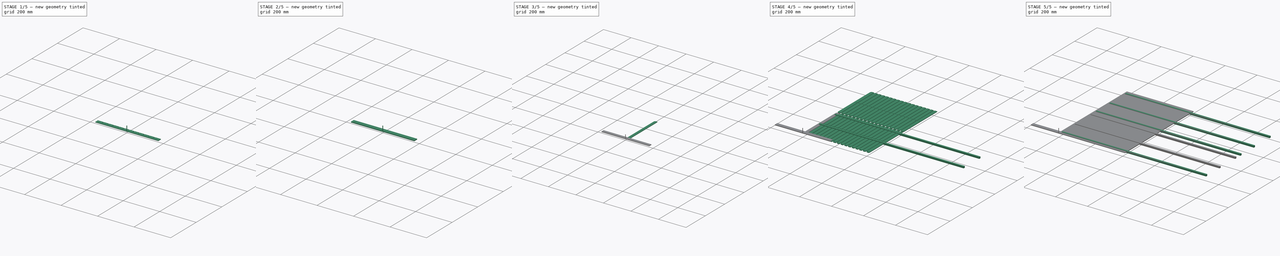
[diagram: build sequence overview — one tinted view per stage of 5, left to right]
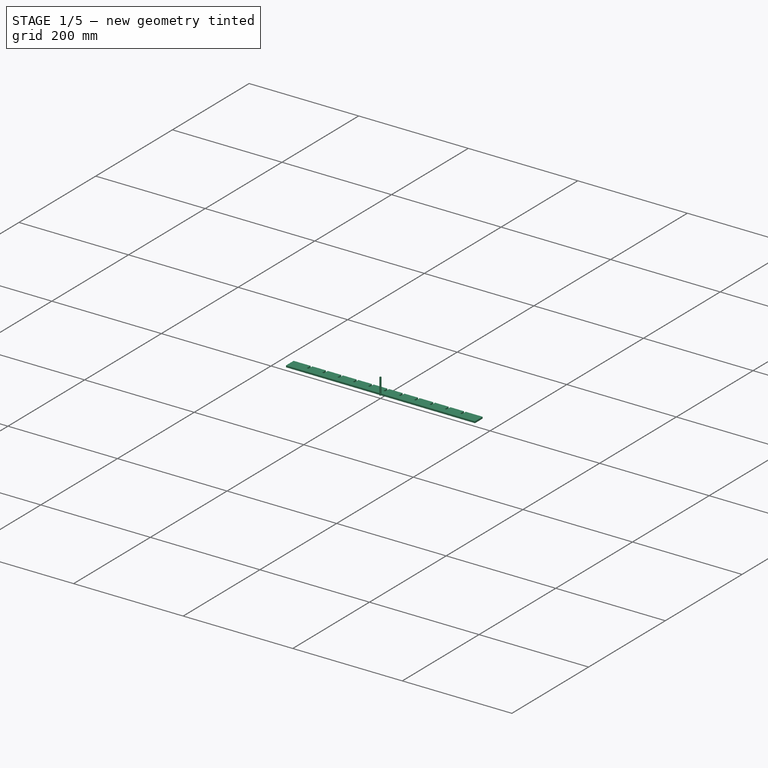
[diagram: stage 1 of 5 — iso view after this stage's code; geometry added in this stage tinted green]
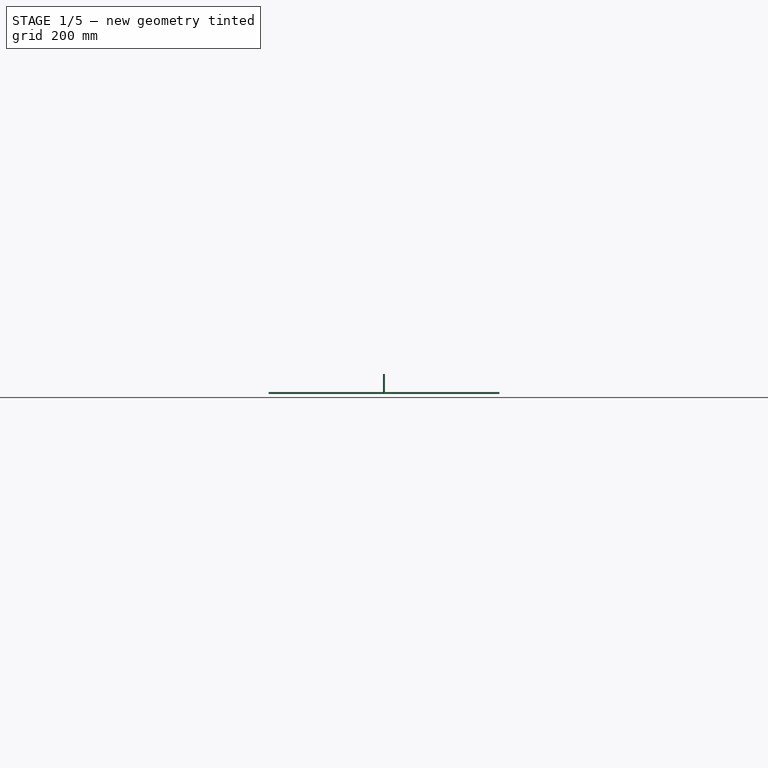
[diagram: stage 1 of 5 — front view after this stage's code; geometry added in this stage tinted green]
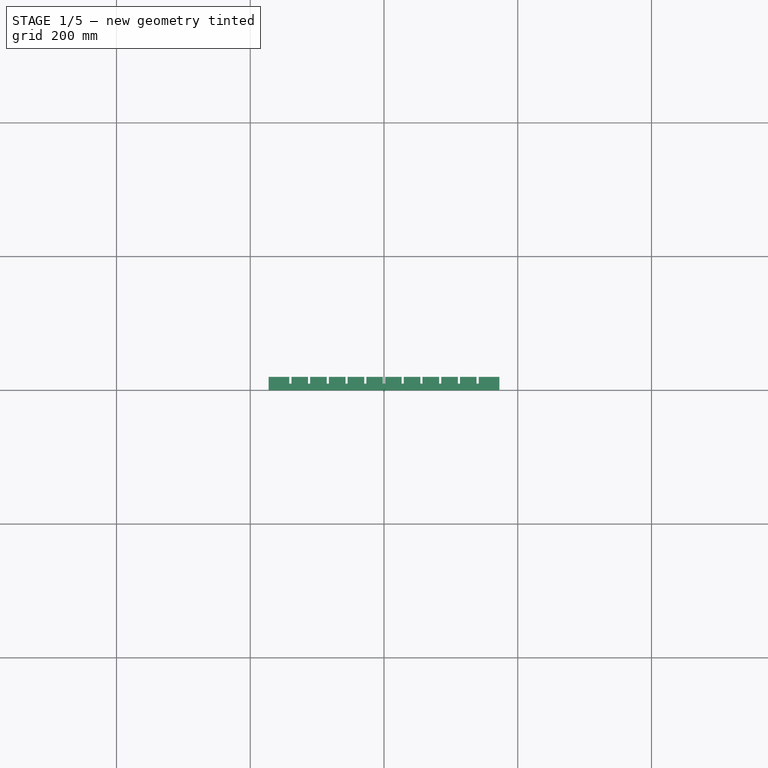
[diagram: stage 1 of 5 — top view after this stage's code; geometry added in this stage tinted green]
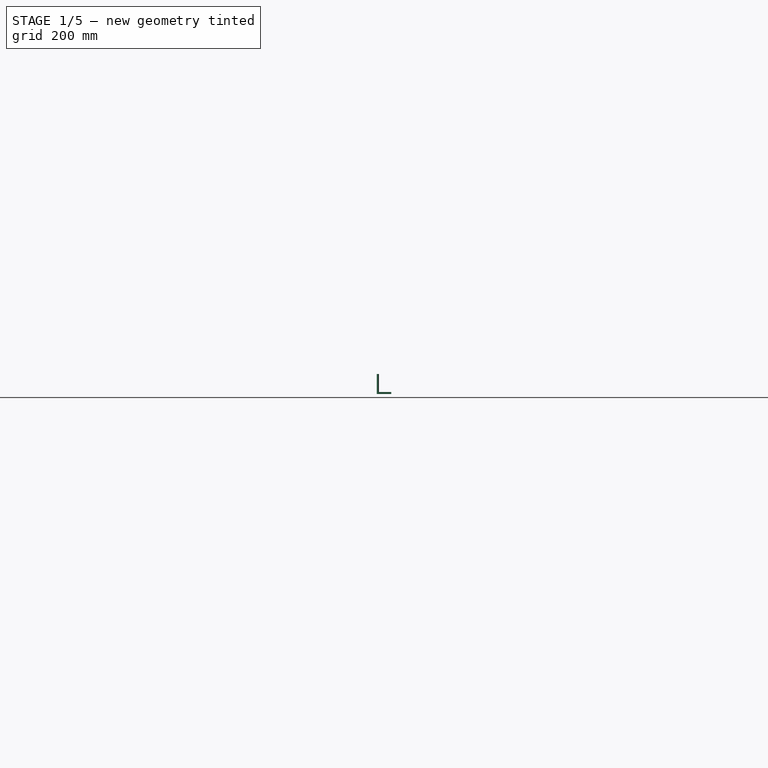
[diagram: stage 1 of 5 — right view after this stage's code; geometry added in this stage tinted green]
FCSTD DOCUMENT  (FreeCAD 0.22R37100 (Git))
Label: basin_bottom_lattice
License: All rights reserved
LicenseURL: http://en.wikipedia.org/wiki/All_rights_reserved
objects: App::LinkElement×36, Part::FeaturePython×10, Path::FeaturePython×10, App::DocumentObjectGroup×6, Sketcher::SketchObject×5, PartDesign::Pocket×4, Part::Box×3, PartDesign::Pad×2, PartDesign::SubShapeBinder×2, PartDesign::LinearPattern×2, PartDesign::Body×2, App::FeaturePython×2, Spreadsheet::Sheet×1, Part::Compound×1
note: 40 computed .brp shape members not serialized (recipe doc carries the construction recipe); baked Part::Feature solids carry a one-line shape summary decoded from their .brp

FEATURE [PartDesign::SubShapeBinder] Binder001
  BindCopyOnChange = 0
  BindMode = 0
  ClaimChildren = true
  Context = -> Body001 [Binder001.]
  Fuse = false
  MakeFace = true
  OffsetFill = false
  OffsetIntersection = false
  OffsetJoinType = 0
  OffsetOpenResult = false
  PartialLoad = false
  Placement = pos=(-140,0,0) rot=(0,0,1;0rad)
  Relative = false
  Support = -> [Populate]
  _Version = 2
  expr: .Placement.Base.x = -(<<Properties>>.cell_number_y - 2) * <<Properties>>.cell_distance_y / 2
FEATURE [PartDesign::Pad] Pad001
  Direction = (0,0,1)
  Length = 3
  Length2 = 10
  Profile = -> Sketch002
  ReferenceAxis = -> Sketch002 [N_Axis]
  Suppressed = false
  Type = 0
  expr: Length = <<Properties>>.wall_thickness
FEATURE [PartDesign::Pocket] Pocket001
  BaseFeature = -> Pad001
  Direction = (0,0,-1)
  Length = 5
  Length2 = 5
  Midplane = true
  Profile = -> Binder001
  Suppressed = false
  Type = 1
FEATURE [PartDesign::LinearPattern] LinearPattern001
  BaseFeature = -> Pocket001
  Direction = -> X_Axis001
  Length = 280
  Mode = 1
  Occurrences = 11
  Offset = 28
  Originals = -> [Pocket001]
  Suppressed = false
  expr: Occurrences = <<Properties>>.cell_number_y - 1
  expr: Offset = <<Properties>>.cell_distance_y
FEATURE [App::DocumentObjectGroup] Model001
  Group = -> [Clone001]
FEATURE [Part::FeaturePython] ToolBit001  label="3.175mm Endmill003"  # Path/CAM toolbit (typed FeaturePython)
  BitPropertyNames = Chipload | CuttingEdgeHeight | Diameter | Flutes | Length | Material | ShankDiameter | SpindleDirection
  BitShape = <path>
  Chipload = 0
  CuttingEdgeHeight = 30
  Diameter = 3.17
  Flutes = 0
  Length = 10
  Material = 0
  ShankDiameter = 3
  ShapeName = endmill
  SpindleDirection = 0
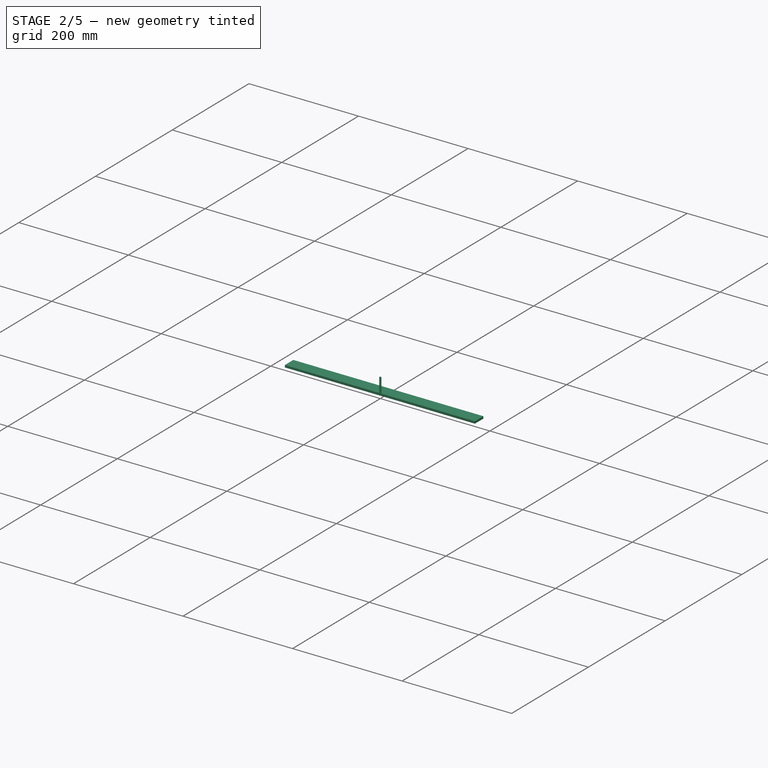
[diagram: stage 2 of 5 — iso view after this stage's code; geometry added in this stage tinted green]
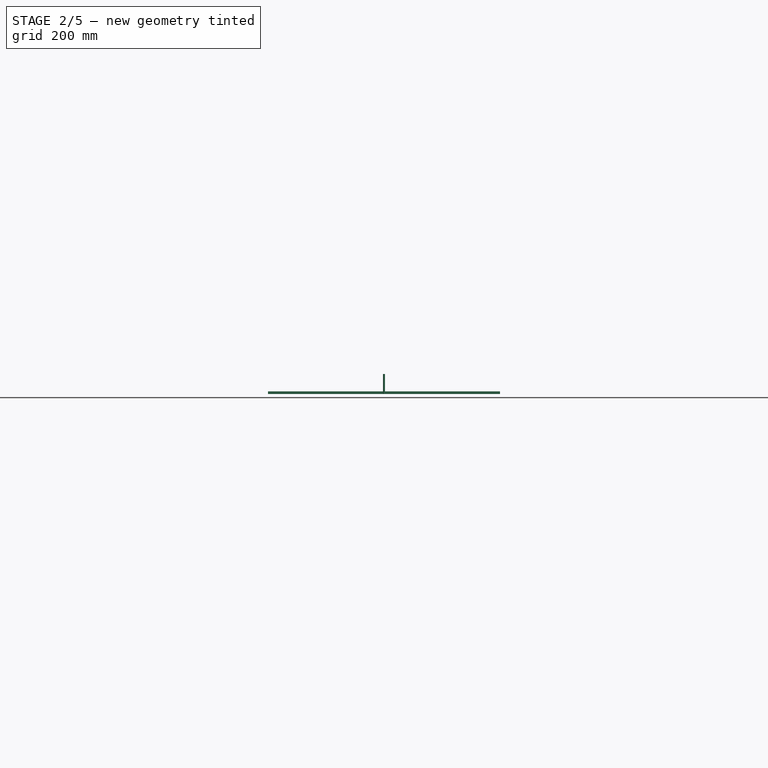
[diagram: stage 2 of 5 — front view after this stage's code; geometry added in this stage tinted green]
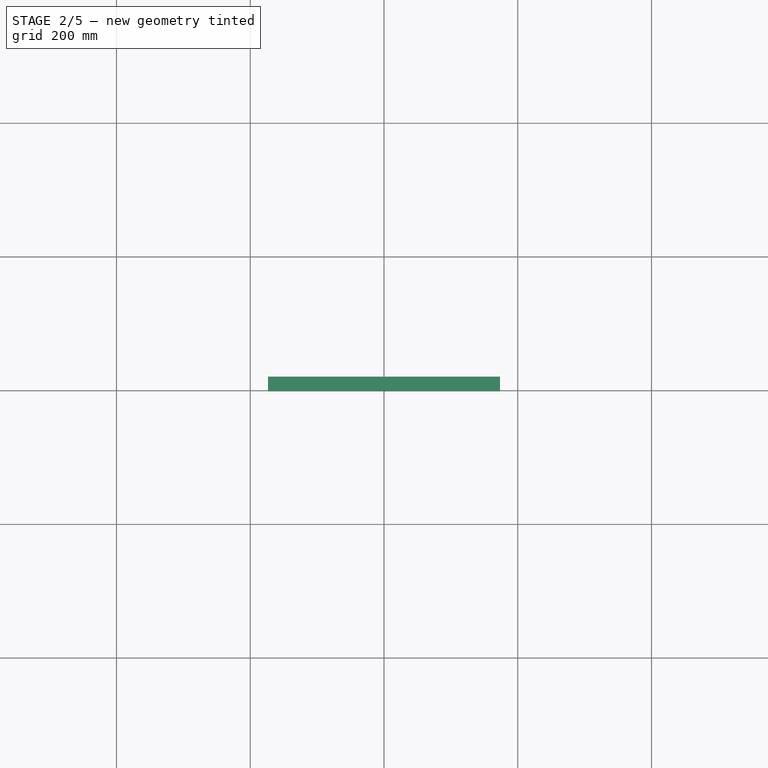
[diagram: stage 2 of 5 — top view after this stage's code; geometry added in this stage tinted green]
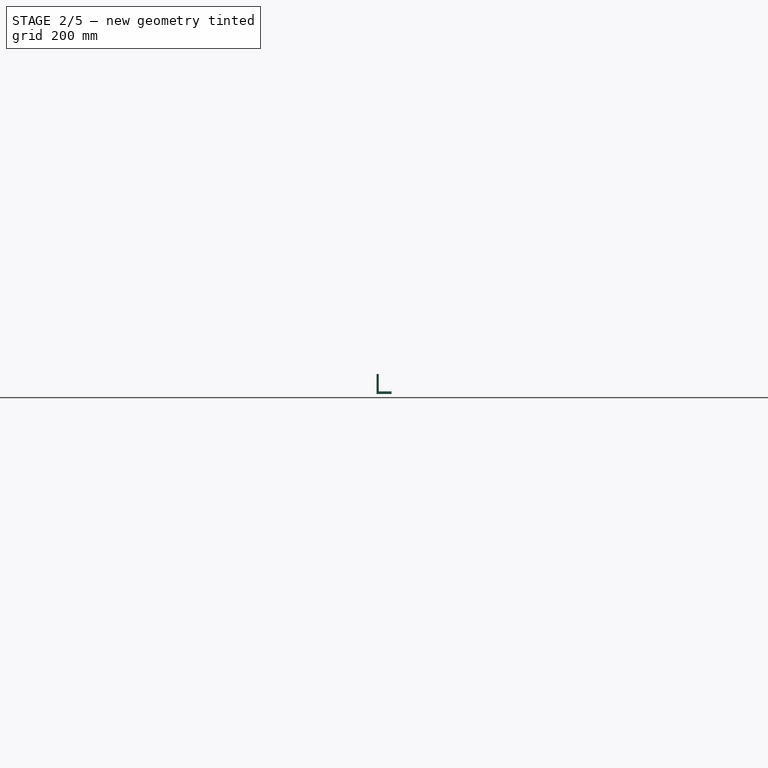
[diagram: stage 2 of 5 — right view after this stage's code; geometry added in this stage tinted green]
FEATURE [Sketcher::SketchObject] Sketch
  AttachmentSupport = -> [XY_Plane]
  FullyConstrained = true
  MapMode = 5
  expr: Constraints[8] = <<Properties>>.cell_height
  expr: Constraints[9] = <<Properties>>.basin_width
  sketch-geometry (11):
    g0: LineSegment StartX=-151.5 StartY=0 StartZ=0 EndX=151.5 EndY=0 EndZ=0
    g1: GeomPoint X=0 Y=10 Z=0
    g2: LineSegment StartX=151.5 StartY=20 StartZ=0 EndX=144.5 EndY=20 EndZ=0
    g3: LineSegment StartX=151.5 StartY=0 StartZ=0 EndX=151.5 EndY=15 EndZ=0
    g4: LineSegment StartX=151.5 StartY=15 StartZ=0 EndX=151.5 EndY=20 EndZ=0
    g5: LineSegment StartX=144.5 StartY=20 StartZ=0 EndX=-144.5 EndY=20 EndZ=0
    g6: LineSegment StartX=-144.5 StartY=20 StartZ=0 EndX=-151.5 EndY=20 EndZ=0
    g7: LineSegment StartX=-151.5 StartY=20 StartZ=0 EndX=-151.5 EndY=15 EndZ=0
    g8: LineSegment StartX=-151.5 StartY=15 StartZ=0 EndX=-151.5 EndY=0 EndZ=0
    g9: LineSegment StartX=-151.5 StartY=15 StartZ=0 EndX=-144.5 EndY=20 EndZ=0
    g10: LineSegment StartX=151.5 StartY=15 StartZ=0 EndX=144.5 EndY=20 EndZ=0
  constraints (29):
    c: Coincident(g8,g0)
    c: Coincident(g0,g3)
    c: Coincident(g4,g2)
    c: Coincident(g6,g7)
    c: Horizontal(g0)
    c: Symmetric(g0,g7,g1)
    c: PointOnObject(g1,g-2)
    c: PointOnObject(g0,g-1)
    c: DistanceY(g4) = 20
    c: DistanceX(g0,g0) = 303
    c: Coincident(g2,g5)
    c: Horizontal(g2)
    c: Coincident(g3,g4)
    c: Vertical(g3)
    c: Vertical(g4)
    c: Coincident(g5,g6)
    c: Horizontal(g5)
    c: Horizontal(g6)
    c: Coincident(g7,g8)
    c: Vertical(g7)
    c: Vertical(g8)
    c: Coincident(g9,g7)
    c: Coincident(g9,g5)
    c: Coincident(g10,g3)
    c: Coincident(g10,g2)
    c: Equal(g7,g4)
    c: Equal(g2,g6)
    c: DistanceY(g4,g4) = 5
    c: DistanceX(g2,g2) = 7
FEATURE [Spreadsheet::Sheet] Spreadsheet  label="Properties"
  cells = B2(cell_length)==145 mm; C2(cell_width)==25 mm; D2(cell_height)==20 mm; E2(cell_number_x)==floor(basin_width / cell_distance_x); F2(cell_number_y)==floor(basin_length / cell_distance_y); G2(wall_thickness)==3 mm; H2(basin_length)==345 mm; I2(basin_width)==303 mm; J2(cell_distance_x)==cell_length + wall_thickness; K2(cell_distance_y)==cell_width + wall_thickness
FEATURE [Sketcher::SketchObject] Sketch001  label="connection_cut_bottom"
  FullyConstrained = true
  expr: Constraints[11] = <<Properties>>.cell_height / 2
  sketch-geometry (5):
    g0: LineSegment StartX=-1.6 StartY=10 StartZ=0 EndX=-1.6 EndY=0 EndZ=0
    g1: LineSegment StartX=-1.6 StartY=0 StartZ=0 EndX=1.6 EndY=0 EndZ=0
    g2: LineSegment StartX=1.6 StartY=0 StartZ=0 EndX=1.6 EndY=10 EndZ=0
    g3: LineSegment StartX=1.6 StartY=10 StartZ=0 EndX=-1.6 EndY=10 EndZ=0
    g4: GeomPoint X=0 Y=5 Z=0
  constraints (13):
    c: Coincident(g0,g1)
    c: Coincident(g1,g2)
    c: Coincident(g2,g3)
    c: Coincident(g3,g0)
    c: Horizontal(g1)
    c: Horizontal(g3)
    c: Vertical(g0)
    c: Vertical(g2)
    c: Symmetric(g1,g0,g4)
    c: PointOnObject(g4,g-2)
    c: PointOnObject(g1,g-1)
    c: DistanceY(g2,g2) = 10
    c: DistanceX(g1,g1) = 3.2
FEATURE [Part::FeaturePython] Placment  label="Custom"  # WARN: FeaturePython — macro-defined, semantics opaque (R4)
  ExposePlacement = true
  FlipZ = false
  Invert = false
  MarkerShape = 1
  MarkerSize = 5
  NumElements = 1
  Placement = pos=(0,20,0) rot=(0,0,1;3.14159rad)
  PlacementChoice = 0
  Type = lattice2Placement.LatticePlacement
  isLattice = 1
  expr: .Placement.Base.y = <<Properties>>.cell_height
FEATURE [Part::FeaturePython] Populate  label="connection_cut_top"  # WARN: FeaturePython — macro-defined, semantics opaque (R4)
  Copying = 0
  ExposePlacement = false
  MarkerShape = 1
  MarkerSize = 0
  NumElements = 0
  Object = -> Sketch001
  OutputCompounding = 2
  PlacementsTo = -> Placment
  Referencing = 0
  Type = lattice2PopulateCopies.LatticePopulateCopies
  isLattice = 0
FEATURE [PartDesign::Pad] Pad
  Direction = (0,0,1)
  Length = 3
  Length2 = 10
  Profile = -> Sketch
  ReferenceAxis = -> Sketch [N_Axis]
  Suppressed = false
  Type = 0
FEATURE [PartDesign::Body] Body  label="wall_x"
  Group = -> [Sketch,Pad,Binder,Pocket,LinearPattern,Sketch003,Pocket002]
  Origin = -> Origin
  Tip = -> Pocket002
FEATURE [Sketcher::SketchObject] Sketch004
  AttachmentSupport = -> [XY_Plane001]
  FullyConstrained = true
  MapMode = 5
  sketch-geometry (3):
    g0: Circle CenterX=-140 CenterY=5 CenterZ=0 NormalX=0 NormalY=0 NormalZ=1 AngleXU=0 Radius=1.7
    g1: Circle CenterX=0 CenterY=5 CenterZ=0 NormalX=0 NormalY=0 NormalZ=1 AngleXU=0 Radius=1.7
    g2: Circle CenterX=140 CenterY=5 CenterZ=0 NormalX=0 NormalY=0 NormalZ=1 AngleXU=0 Radius=1.7
  constraints (8):
    c: PointOnObject(g1,g-2)
    c: Symmetric(g2,g0,g-2)
    c: Horizontal(g1,g2)
    c: DistanceX(g2) = 140
    c: DistanceY(g2) = 5
    c: Equal(g2,g1)
    c: Equal(g2,g0)
    c: Diameter(g2) = 3.4
FEATURE [PartDesign::Pocket] Pocket003
  BaseFeature = -> LinearPattern001
  Direction = (0,0,-1)
  Length = 5
  Length2 = 5
  Midplane = true
  Profile = -> Sketch004
  ReferenceAxis = -> Sketch004 [N_Axis]
  Suppressed = false
  Type = 1
FEATURE [Path::FeaturePython] DressupTag  # Path/CAM operation (typed FeaturePython)
  Angle = 90
  Base = -> Profile001
  Disabled = [0,1,2,3,4,5,6,7,8,9,10,11,12,13,14,15,16,17,18,19,20,21,22,23,24,25,26,27,28,29,30,31,32,33,34,35,36,37,38,39,40,41,42,43,44,45,46,47,48,49,50,51,52,53,54,55,56,57,58,59,60,61,62,63,64,65,66,67,68,69,+158 more]
  Height = 2
  Positions = (228) [(21.6,15,-0.099999),(21.6,137,-0.099999),(21.6,285,-0.099999),(44.8,15,-0.099999),(44.8,137,-0.099999),(44.8,285,-0.099999),(68,15,-0.099999),+221 more]
  Radius = 0
  SegmentationFactor = 50
  Width = 5
FEATURE [App::DocumentObjectGroup] Operations
  Group = -> [Profile,DressupTag]
FEATURE [Path::FeaturePython] Job  # Path/CAM operation (typed FeaturePython)
  CycleTime = 00:15:48
  Fixtures = G54
  GeometryTolerance = 0.01
  JobType = 0
  LastPostProcessDate = 2024-05-06 13:00:47.335098
  LastPostProcessOutput = <path> \n/mnt/flash/Job-1.tap
  Model = -> Model
  Operations = -> Operations
  OrderOutputBy = 2
  PostProcessor = 3
  PostProcessorOutputFile = <path>/%j.tap
  SetupSheet = -> SetupSheet
  SplitOutput = true
  Stock = -> Stock001
  Tools = -> Tools
FEATURE [App::FeaturePython] SetupSheet001  # Path/CAM operation (typed FeaturePython)
  ClearanceHeightExpression = OpStockZMax+SetupSheet001.ClearanceHeightOffset
  ClearanceHeightOffset = 5
  CoolantMode = 0
  CoolantModes = None | Flood | Mist
  FinalDepthExpression = -0.1 mm
  HorizRapid = 0
  ProfileDirection = 1
  ProfileSide = 0
  ProfileUseComp = true
  ProfileprocessCircles = true
  ProfileprocessHoles = true
  ProfileprocessPerimeter = true
  SafeHeightExpression = OpStockZMax+SetupSheet001.SafeHeightOffset
  SafeHeightOffset = 3
  StartDepthExpression = 3 mm
  StepDownExpression = 4 mm
  VertRapid = 0
FEATURE [Part::FeaturePython] Clone001  label="Model-wall_y"  # Draft clone (typed FeaturePython)
  AttacherType = Attacher::AttachEngine3D
  Fuse = false
  Objects = -> [Body001]
  PathResource = Model
  Placement = pos=(-172.5,-20,0) rot=(0,0,1;0rad)
  Scale = (1,1,1)
FEATURE [Path::FeaturePython] __175mm_Endmill001  label="3.175mm Endmill002"  # Path/CAM operation (typed FeaturePython)
  HorizFeed = 33.3333
  HorizRapid = 0
  SpindleDir = 0
  SpindleSpeed = 18000
  Tool = -> ToolBit001
  ToolNumber = 1
  VertFeed = 36.6667
  VertRapid = 0
  expr: HorizRapid = SetupSheet001.HorizRapid
  expr: VertRapid = SetupSheet001.VertRapid
FEATURE [App::DocumentObjectGroup] Tools001
  Group = -> [__175mm_Endmill001]
FEATURE [Part::FeaturePython] Stock  # WARN: FeaturePython — macro-defined, semantics opaque (R4)
  Base = -> Model001
  ExtXneg = 1
  ExtXpos = 1
  ExtYneg = 1
  ExtYpos = 1
  ExtZneg = 0
  ExtZpos = 1
  Placement = pos=(-172.5,0,0) rot=(0,0,1;0rad)
  StockType = FromBase
FEATURE [Path::FeaturePython] Profile002  # Path/CAM operation (typed FeaturePython)
  Active = false
  AreaParams:
    Tolerance = 1e-07
    FitArcs = True
    Simplify = False
    CleanDistance = 0.0
    Accuracy = 0.01
    Unit = 1.0
    MinArcPoints = 4
    MaxArcPoints = 100
    ClipperScale = 10000000.0
    Fill = 0
    Coplanar = 0
    Reorient = True
    Outline = False
    Explode = False
    OpenMode = 0
    Deflection = 0.01
    SubjectFill = 0
    ClipFill = 0
    Offset = -1.585
    ExtraPass = 0
    Stepover = 0.0
    LastStepover = 0.0
    JoinType = 0
    EndType = 0
    MiterLimit = 2.0
    RoundPrecision = 0.0
    PocketMode = 0
    ToolRadius = 1.0
    PocketExtraOffset = 0.0
    PocketStepover = 0.0
    PocketLastStepover = 0.0
    FromCenter = False
    Angle = 45.0
    AngleShift = 0.0
    Shift = 0.0
    Thicken = False
    SectionCount = -1
    Stepdown = 1.0
    SectionOffset = 0.0
    SectionTolerance = 1e-06
    SectionMode = 2
    Project = False
  Base = -> [Clone001]
  ClearanceHeight = 9
  CoolantMode = 0
  CycleTime = 00:00:11
  Direction = 1
  FinalDepth = -0.1
  HandleMultipleFeatures = 0
  JoinType = 0
  MiterLimit = 0.1
  OffsetExtra = 0
  OpFinalDepth = 0
  OpStartDepth = 4
  OpStockZMax = 4
  OpStockZMin = 0
  OpToolDiameter = 3.17
  PathParams = {'orientation': 1, 'feedrate': 33.333333333333336, 'feedrate_v': 36.66666666666666, 'verbose': True, 'resume_height': 7.0, 'retraction': 9.0, 'return_end': True, 'preamble': False, 'start': Vector (-172.393730734435, -14.999943019075527, 9.0)}
  SafeHeight = 7
  Side = 0
  SplitArcs = false
  StartDepth = 3
  StartPoint = (0,0,0)
  StepDown = 4
  ToolController = -> __175mm_Endmill001
  UseComp = true
  UseStartPoint = false
  processCircles = true
  processHoles = true
  processPerimeter = false
  expr: ClearanceHeight = OpStockZMax + SetupSheet001.ClearanceHeightOffset
  expr: FinalDepth = -0.1 mm
  expr: SafeHeight = OpStockZMax + SetupSheet001.SafeHeightOffset
  expr: StartDepth = 3 mm
  expr: StepDown = 4 mm
FEATURE [Path::FeaturePython] Profile003  # Path/CAM operation (typed FeaturePython)
  Active = true
  AreaParams:
    Tolerance = 1e-07
    FitArcs = True
    Simplify = False
    CleanDistance = 0.0
    Accuracy = 0.01
    Unit = 1.0
    MinArcPoints = 4
    MaxArcPoints = 100
    ClipperScale = 10000000.0
    Fill = 0
    Coplanar = 0
    Reorient = True
    Outline = False
    Explode = False
    OpenMode = 0
    Deflection = 0.01
    SubjectFill = 0
    ClipFill = 0
    Offset = 1.585
    ExtraPass = 0
    Stepover = 0.0
    LastStepover = 0.0
    JoinType = 0
    EndType = 0
    MiterLimit = 2.0
    RoundPrecision = 0.0
    PocketMode = 0
    ToolRadius = 1.0
    PocketExtraOffset = 0.0
    PocketStepover = 0.0
    PocketLastStepover = 0.0
    FromCenter = False
    Angle = 45.0
    AngleShift = 0.0
    Shift = 0.0
    Thicken = False
    SectionCount = -1
    Stepdown = 1.0
    SectionOffset = 0.0
    SectionTolerance = 1e-06
    SectionMode = 2
    Project = False
  Base = -> [Clone001]
  ClearanceHeight = 9
  CoolantMode = 0
  CycleTime = 00:00:28
  Direction = 1
  FinalDepth = -0.1
  HandleMultipleFeatures = 0
  JoinType = 0
  MiterLimit = 0.1
  OffsetExtra = 0
  OpFinalDepth = 0
  OpStartDepth = 4
  OpStockZMax = 4
  OpStockZMin = 0
  OpToolDiameter = 3.17
  PathParams = {'orientation': 0, 'feedrate': 33.333333333333336, 'feedrate_v': 36.66666666666666, 'verbose': True, 'resume_height': 7.0, 'retraction': 9.0, 'return_end': True, 'preamble': False}
  SafeHeight = 7
  Side = 0
  SplitArcs = false
  StartDepth = 3
  StartPoint = (0,0,0)
  StepDown = 4
  ToolController = -> __175mm_Endmill001
  UseComp = true
  UseStartPoint = false
  processCircles = false
  processHoles = false
  processPerimeter = true
  expr: Base = <<Profile002>>.Base
  expr: ClearanceHeight = OpStockZMax + SetupSheet001.ClearanceHeightOffset
  expr: FinalDepth = -0.1 mm
  expr: SafeHeight = OpStockZMax + SetupSheet001.SafeHeightOffset
  expr: StartDepth = 3 mm
  expr: StepDown = 4 mm
FEATURE [Path::FeaturePython] Array002  # Path/CAM operation (typed FeaturePython)
  Active = true
  Angle = 0
  Base = -> [Profile002,Profile003]
  Centre = (0,0,0)
  Copies = 0
  CopiesX = 0
  CopiesY = 9
  JitterMagnitude = (0,0,0)
  JitterPercent = 0
  JitterSeed = 0
  Offset = (348.2,-23.2,0)
  SwapDirection = false
  ToolController = -> __175mm_Endmill001
  Type = 1
FEATURE [App::DocumentObjectGroup] Operations001
  Group = -> [Profile002,Profile003,Array002]
FEATURE [Path::FeaturePython] Job001  # Path/CAM operation (typed FeaturePython)
  CycleTime = 00:00:28
  Fixtures = G54
  GeometryTolerance = 0.01
  JobType = 0
  LastPostProcessDate = 2024-05-06 14:20:53.200046
  LastPostProcessOutput = <path>
  Model = -> Model001
  Operations = -> Operations001
  OrderOutputBy = 0
  PostProcessor = 3
  PostProcessorOutputFile = <path>/%j.tap
  SetupSheet = -> SetupSheet001
  SplitOutput = false
  Stock = -> Stock
  Tools = -> Tools001
note: 6 file-system paths scrubbed to <path> (originals preserved in the JSON sidecar)
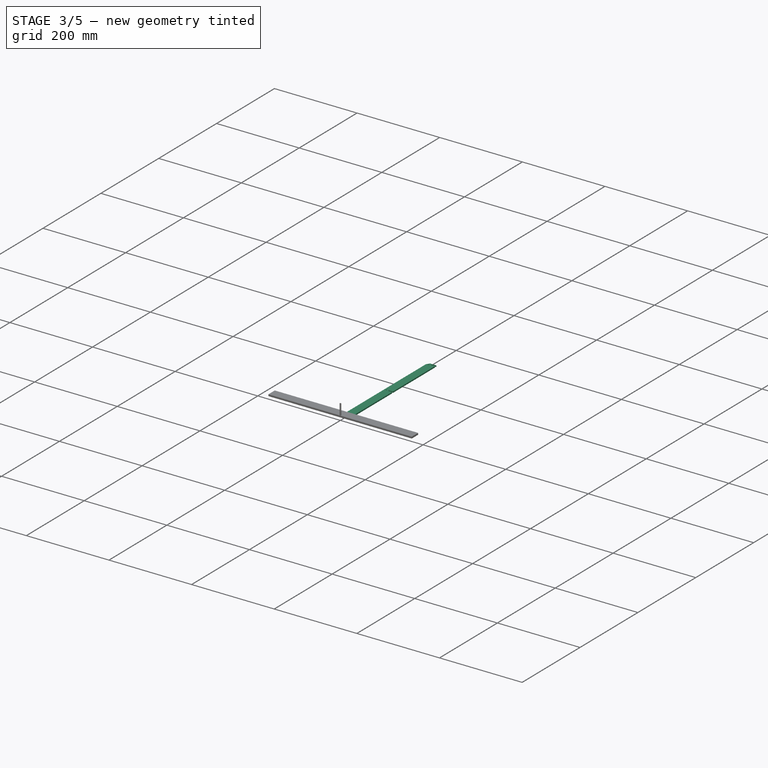
[diagram: stage 3 of 5 — iso view after this stage's code; geometry added in this stage tinted green]
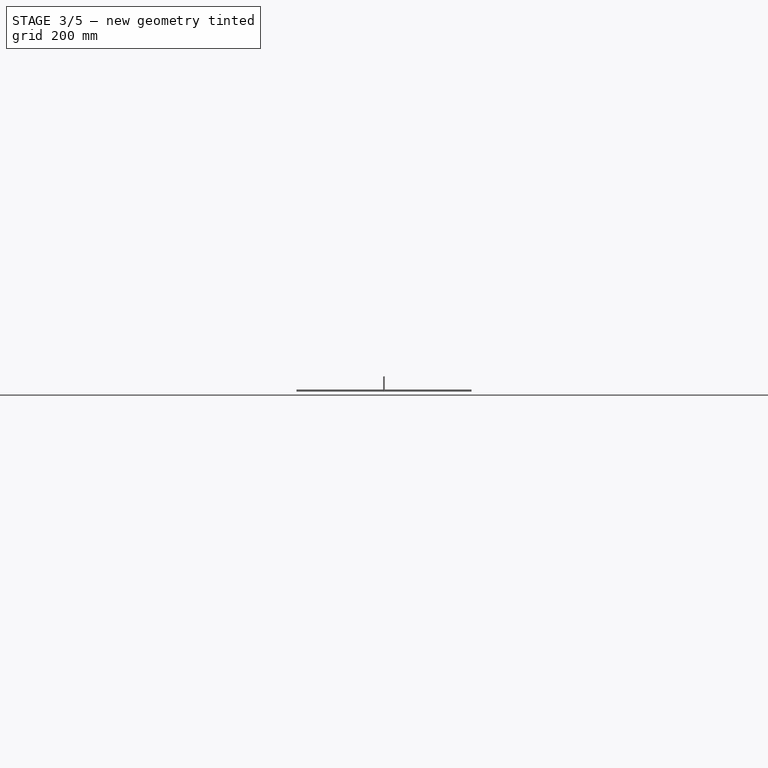
[diagram: stage 3 of 5 — front view after this stage's code; geometry added in this stage tinted green]
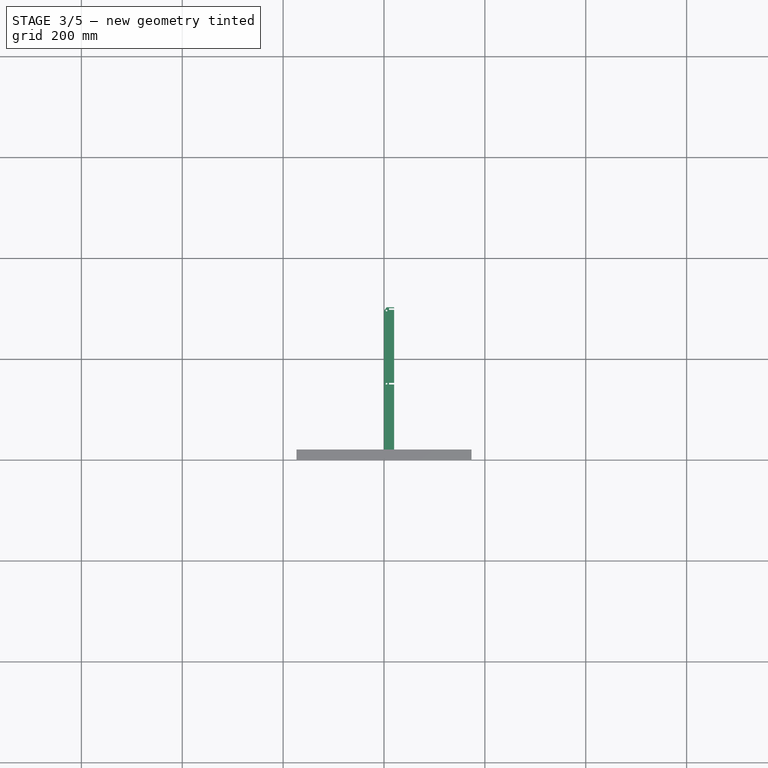
[diagram: stage 3 of 5 — top view after this stage's code; geometry added in this stage tinted green]
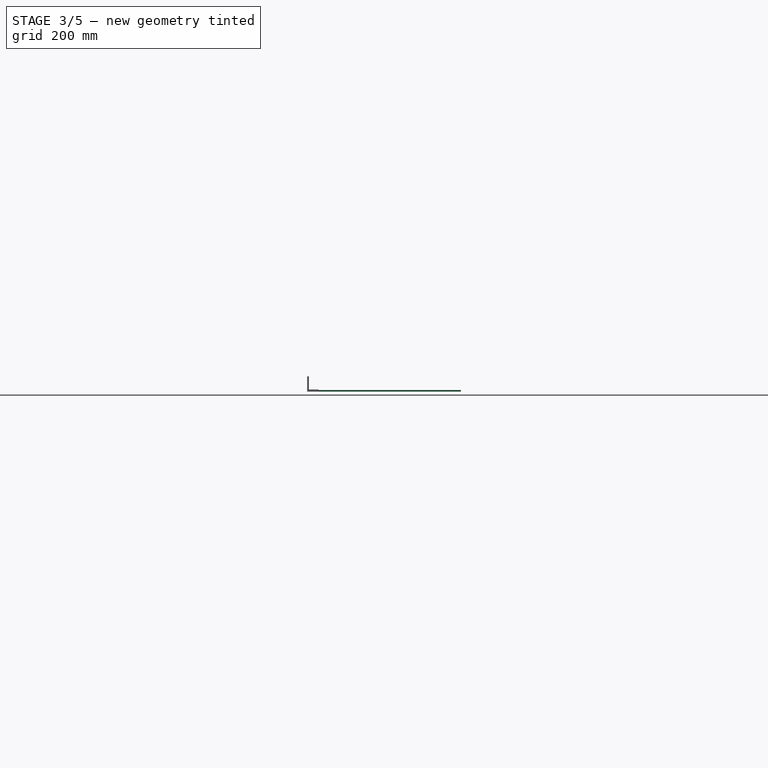
[diagram: stage 3 of 5 — right view after this stage's code; geometry added in this stage tinted green]
FEATURE [Sketcher::SketchObject] Sketch002
  AttachmentSupport = -> [XY_Plane001]
  FullyConstrained = true
  MapMode = 5
  expr: Constraints[11] = <<Properties>>.cell_height
  expr: Constraints[12] = <<Properties>>.basin_length
  sketch-geometry (5):
    g0: LineSegment StartX=-172.5 StartY=20 StartZ=0 EndX=-172.5 EndY=0 EndZ=0
    g1: LineSegment StartX=-172.5 StartY=0 StartZ=0 EndX=172.5 EndY=0 EndZ=0
    g2: LineSegment StartX=172.5 StartY=0 StartZ=0 EndX=172.5 EndY=20 EndZ=0
    g3: LineSegment StartX=172.5 StartY=20 StartZ=0 EndX=-172.5 EndY=20 EndZ=0
    g4: GeomPoint X=0 Y=10 Z=0
  constraints (13):
    c: Coincident(g0,g1)
    c: Coincident(g1,g2)
    c: Coincident(g2,g3)
    c: Coincident(g3,g0)
    c: Horizontal(g1)
    c: Horizontal(g3)
    c: Vertical(g0)
    c: Vertical(g2)
    c: Symmetric(g1,g0,g4)
    c: PointOnObject(g4,g-2)
    c: PointOnObject(g1,g-1)
    c: DistanceY(g2,g2) = 20
    c: DistanceX(g1,g1) = 345
FEATURE [PartDesign::SubShapeBinder] Binder
  BindCopyOnChange = 0
  BindMode = 0
  ClaimChildren = true
  Context = -> Body [Binder.]
  Fuse = false
  MakeFace = true
  OffsetFill = false
  OffsetIntersection = false
  OffsetJoinType = 0
  OffsetOpenResult = false
  PartialLoad = false
  Placement = pos=(-148,0,0) rot=(0,0,1;0rad)
  Relative = false
  Support = -> [Sketch001]
  _Version = 2
  expr: .Placement.Base.x = -<<Properties>>.cell_number_x * <<Properties>>.cell_distance_x / 2
FEATURE [PartDesign::Pocket] Pocket
  BaseFeature = -> Pad
  Direction = (0,0,-1)
  Length = 5
  Length2 = 5
  Midplane = true
  Profile = -> Binder
  Suppressed = false
  Type = 1
FEATURE [PartDesign::LinearPattern] LinearPattern
  BaseFeature = -> Pocket
  Direction = -> X_Axis
  Length = 296
  Mode = 1
  Occurrences = 3
  Offset = 148
  Originals = -> [Pocket]
  Suppressed = false
  expr: Occurrences = <<Properties>>.cell_number_x + 1
  expr: Offset = <<Properties>>.cell_distance_x
FEATURE [Sketcher::SketchObject] Sketch003
  AttachmentSupport = -> [XY_Plane]
  FullyConstrained = true
  MapMode = 5
  sketch-geometry (3):
    g0: Circle CenterX=0 CenterY=15 CenterZ=0 NormalX=0 NormalY=0 NormalZ=1 AngleXU=0 Radius=1.7
    g1: Circle CenterX=145 CenterY=15 CenterZ=0 NormalX=0 NormalY=0 NormalZ=1 AngleXU=0 Radius=1.7
    g2: Circle CenterX=-145 CenterY=15 CenterZ=0 NormalX=0 NormalY=0 NormalZ=1 AngleXU=0 Radius=1.7
  constraints (8):
    c: PointOnObject(g0,g-2)
    c: Equal(g2,g0)
    c: Equal(g2,g1)
    c: Diameter(g2) = 3.4
    c: Symmetric(g1,g2,g-2)
    c: Horizontal(g0,g1)
    c: DistanceX(g1) = 145
    c: DistanceY(g1) = 15
FEATURE [PartDesign::Pocket] Pocket002
  BaseFeature = -> LinearPattern
  Direction = (0,0,-1)
  Length = 5
  Length2 = 5
  Midplane = true
  Profile = -> Sketch003
  ReferenceAxis = -> Sketch003 [N_Axis]
  Suppressed = false
  Type = 1
FEATURE [PartDesign::Body] Body001  label="wall_y"
  Group = -> [Sketch002,Binder001,Pad001,Pocket001,LinearPattern001,Sketch004,Pocket003]
  Origin = -> Origin001
  Tip = -> Pocket003
FEATURE [App::FeaturePython] SetupSheet  # Path/CAM operation (typed FeaturePython)
  ClearanceHeightExpression = OpStockZMax+SetupSheet.ClearanceHeightOffset
  ClearanceHeightOffset = 5
  CoolantMode = 0
  CoolantModes = None | Flood | Mist
  FinalDepthExpression = -0.1 mm
  HorizRapid = 0
  ProfileDirection = 1
  ProfileSide = 0
  ProfileUseComp = true
  ProfileprocessCircles = true
  ProfileprocessHoles = true
  ProfileprocessPerimeter = true
  SafeHeightExpression = OpStockZMax+SetupSheet.SafeHeightOffset
  SafeHeightOffset = 3
  StartDepthExpression = 3 mm
  StepDownExpression = 4 mm
  VertRapid = 0
FEATURE [Part::FeaturePython] Clone  label="Model-wall_x"  # Draft clone (typed FeaturePython)
  AttacherType = Attacher::AttachEngine3D
  Fuse = false
  Objects = -> [Body]
  PathResource = Model
  Placement = pos=(20,151.5,0) rot=(0,0,1;1.5708rad)
  Scale = (1,1,1)
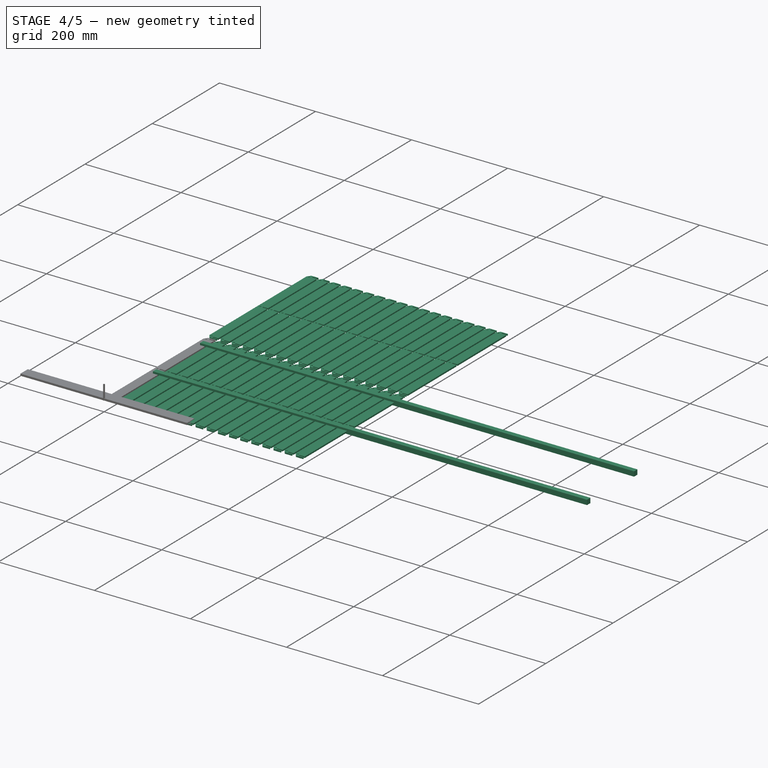
[diagram: stage 4 of 5 — iso view after this stage's code; geometry added in this stage tinted green]
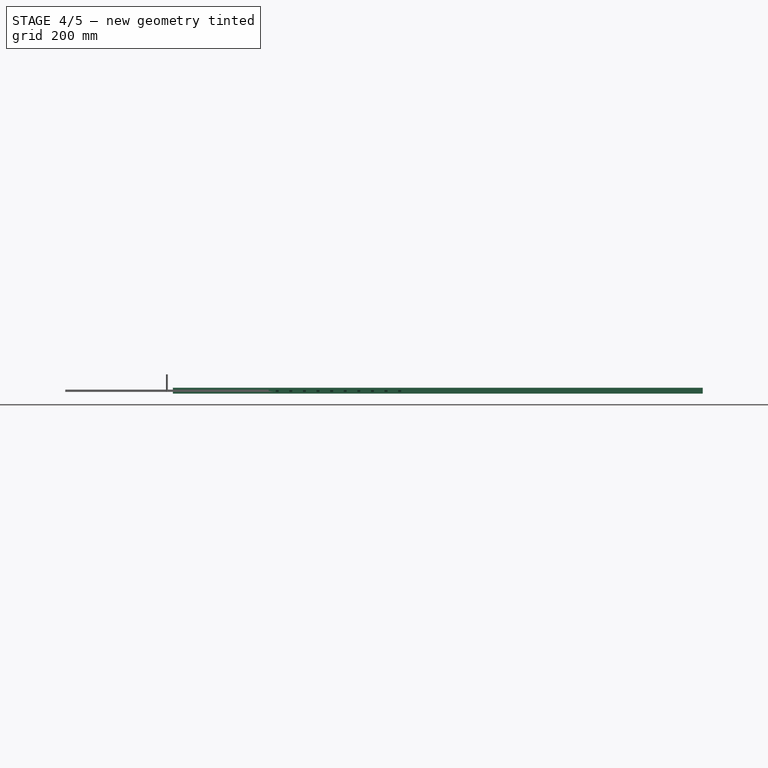
[diagram: stage 4 of 5 — front view after this stage's code; geometry added in this stage tinted green]
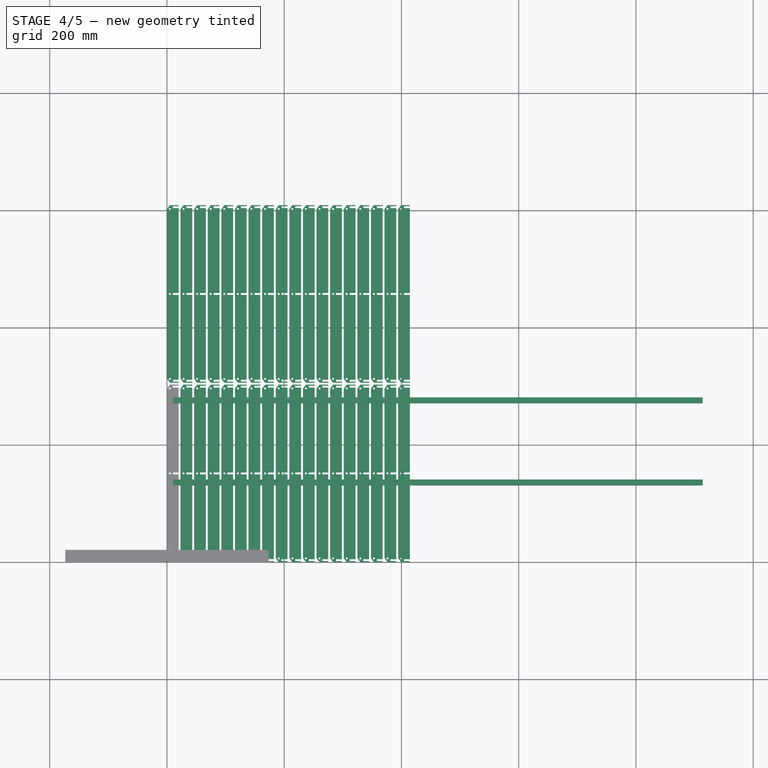
[diagram: stage 4 of 5 — top view after this stage's code; geometry added in this stage tinted green]
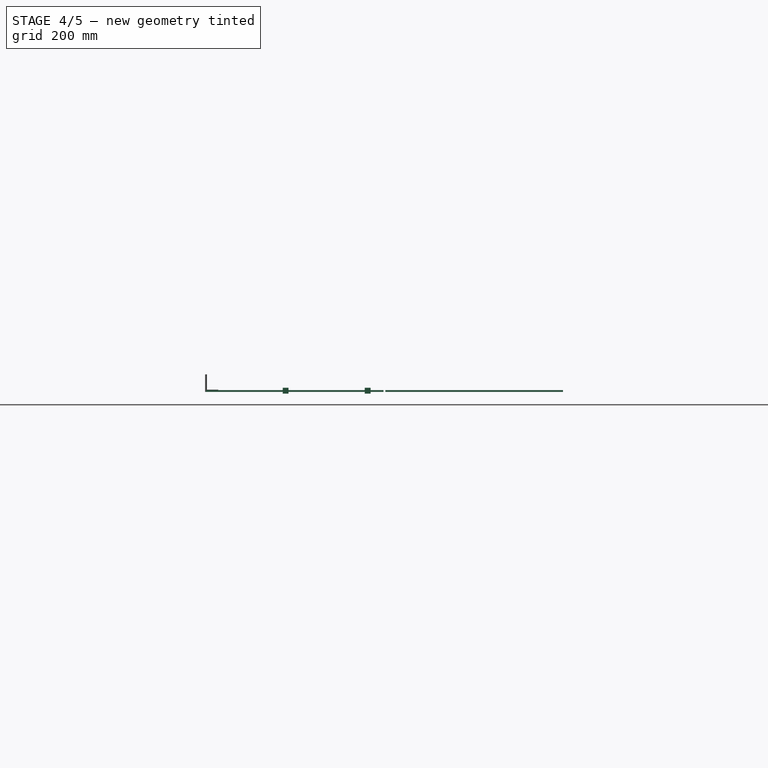
[diagram: stage 4 of 5 — right view after this stage's code; geometry added in this stage tinted green]
FEATURE [Part::FeaturePython] ToolBit  label="3.175mm Endmill"  # Path/CAM toolbit (typed FeaturePython)
  BitPropertyNames = Chipload | CuttingEdgeHeight | Diameter | Flutes | Length | Material | ShankDiameter | SpindleDirection
  BitShape = <path>
  Chipload = 0
  CuttingEdgeHeight = 30
  Diameter = 3.17
  Flutes = 0
  Length = 10
  Material = 0
  ShankDiameter = 3
  ShapeName = endmill
  SpindleDirection = 0
FEATURE [Part::Box] Box001  label="Cube001"
  AttacherType = Attacher::AttachEngine3D
  Height = 10
  Length = 904
  Placement = pos=(10,131,-3) rot=(0,0,1;0rad)
  Width = 10
FEATURE [Part::Box] Box002  label="Cube002"
  AttacherType = Attacher::AttachEngine3D
  Height = 10
  Length = 904
  Placement = pos=(10,271,-3) rot=(0,0,1;0rad)
  Width = 10
FEATURE [App::LinkElement] Array_i0
  LinkPlacement = pos=(-20,-151.5,0) rot=(0,0,1;4.71239rad)
  LinkedObject = -> Clone
  Placement = pos=(-20,-151.5,0) rot=(0,0,1;4.71239rad)
  _LinkOwner = 1772
FEATURE [App::LinkElement] Array_i1
  LinkPlacement = pos=(-20,-457.7,0) rot=(0,0,1;4.71239rad)
  LinkedObject = -> Clone
  Placement = pos=(-20,-457.7,0) rot=(0,0,1;4.71239rad)
  _LinkOwner = 1772
FEATURE [App::LinkElement] Array_i2
  LinkPlacement = pos=(-43.2,-151.5,0) rot=(0,0,1;4.71239rad)
  LinkedObject = -> Clone
  Placement = pos=(-43.2,-151.5,0) rot=(0,0,1;4.71239rad)
  _LinkOwner = 1772
FEATURE [App::LinkElement] Array_i3
  LinkPlacement = pos=(-43.2,-457.7,0) rot=(0,0,1;4.71239rad)
  LinkedObject = -> Clone
  Placement = pos=(-43.2,-457.7,0) rot=(0,0,1;4.71239rad)
  _LinkOwner = 1772
FEATURE [App::LinkElement] Array_i4
  LinkPlacement = pos=(-66.4,-151.5,0) rot=(0,0,1;4.71239rad)
  LinkedObject = -> Clone
  Placement = pos=(-66.4,-151.5,0) rot=(0,0,1;4.71239rad)
  _LinkOwner = 1772
FEATURE [App::LinkElement] Array_i5
  LinkPlacement = pos=(-66.4,-457.7,0) rot=(0,0,1;4.71239rad)
  LinkedObject = -> Clone
  Placement = pos=(-66.4,-457.7,0) rot=(0,0,1;4.71239rad)
  _LinkOwner = 1772
FEATURE [App::LinkElement] Array_i6
  LinkPlacement = pos=(-89.6,-151.5,0) rot=(0,0,1;4.71239rad)
  LinkedObject = -> Clone
  Placement = pos=(-89.6,-151.5,0) rot=(0,0,1;4.71239rad)
  _LinkOwner = 1772
FEATURE [App::LinkElement] Array_i7
  LinkPlacement = pos=(-89.6,-457.7,0) rot=(0,0,1;4.71239rad)
  LinkedObject = -> Clone
  Placement = pos=(-89.6,-457.7,0) rot=(0,0,1;4.71239rad)
  _LinkOwner = 1772
FEATURE [App::LinkElement] Array_i8
  LinkPlacement = pos=(-112.8,-151.5,0) rot=(0,0,1;4.71239rad)
  LinkedObject = -> Clone
  Placement = pos=(-112.8,-151.5,0) rot=(0,0,1;4.71239rad)
  _LinkOwner = 1772
FEATURE [App::LinkElement] Array_i9
  LinkPlacement = pos=(-112.8,-457.7,0) rot=(0,0,1;4.71239rad)
  LinkedObject = -> Clone
  Placement = pos=(-112.8,-457.7,0) rot=(0,0,1;4.71239rad)
  _LinkOwner = 1772
FEATURE [App::LinkElement] Array_i10
  LinkPlacement = pos=(-136,-151.5,0) rot=(0,0,1;4.71239rad)
  LinkedObject = -> Clone
  Placement = pos=(-136,-151.5,0) rot=(0,0,1;4.71239rad)
  _LinkOwner = 1772
FEATURE [App::LinkElement] Array_i11
  LinkPlacement = pos=(-136,-457.7,0) rot=(0,0,1;4.71239rad)
  LinkedObject = -> Clone
  Placement = pos=(-136,-457.7,0) rot=(0,0,1;4.71239rad)
  _LinkOwner = 1772
FEATURE [App::LinkElement] Array_i12
  LinkPlacement = pos=(-159.2,-151.5,0) rot=(0,0,1;4.71239rad)
  LinkedObject = -> Clone
  Placement = pos=(-159.2,-151.5,0) rot=(0,0,1;4.71239rad)
  _LinkOwner = 1772
FEATURE [App::LinkElement] Array_i13
  LinkPlacement = pos=(-159.2,-457.7,0) rot=(0,0,1;4.71239rad)
  LinkedObject = -> Clone
  Placement = pos=(-159.2,-457.7,0) rot=(0,0,1;4.71239rad)
  _LinkOwner = 1772
FEATURE [App::LinkElement] Array_i14
  LinkPlacement = pos=(-182.4,-151.5,0) rot=(0,0,1;4.71239rad)
  LinkedObject = -> Clone
  Placement = pos=(-182.4,-151.5,0) rot=(0,0,1;4.71239rad)
  _LinkOwner = 1772
FEATURE [App::LinkElement] Array_i15
  LinkPlacement = pos=(-182.4,-457.7,0) rot=(0,0,1;4.71239rad)
  LinkedObject = -> Clone
  Placement = pos=(-182.4,-457.7,0) rot=(0,0,1;4.71239rad)
  _LinkOwner = 1772
FEATURE [App::LinkElement] Array_i16
  LinkPlacement = pos=(-205.6,-151.5,0) rot=(0,0,1;4.71239rad)
  LinkedObject = -> Clone
  Placement = pos=(-205.6,-151.5,0) rot=(0,0,1;4.71239rad)
  _LinkOwner = 1772
FEATURE [App::LinkElement] Array_i17
  LinkPlacement = pos=(-205.6,-457.7,0) rot=(0,0,1;4.71239rad)
  LinkedObject = -> Clone
  Placement = pos=(-205.6,-457.7,0) rot=(0,0,1;4.71239rad)
  _LinkOwner = 1772
FEATURE [App::LinkElement] Array_i18
  LinkPlacement = pos=(-228.8,-151.5,0) rot=(0,0,1;4.71239rad)
  LinkedObject = -> Clone
  Placement = pos=(-228.8,-151.5,0) rot=(0,0,1;4.71239rad)
  _LinkOwner = 1772
FEATURE [App::LinkElement] Array_i19
  LinkPlacement = pos=(-228.8,-457.7,0) rot=(0,0,1;4.71239rad)
  LinkedObject = -> Clone
  Placement = pos=(-228.8,-457.7,0) rot=(0,0,1;4.71239rad)
  _LinkOwner = 1772
FEATURE [App::LinkElement] Array_i20
  LinkPlacement = pos=(-252,-151.5,0) rot=(0,0,1;4.71239rad)
  LinkedObject = -> Clone
  Placement = pos=(-252,-151.5,0) rot=(0,0,1;4.71239rad)
  _LinkOwner = 1772
FEATURE [App::LinkElement] Array_i21
  LinkPlacement = pos=(-252,-457.7,0) rot=(0,0,1;4.71239rad)
  LinkedObject = -> Clone
  Placement = pos=(-252,-457.7,0) rot=(0,0,1;4.71239rad)
  _LinkOwner = 1772
FEATURE [App::LinkElement] Array_i22
  LinkPlacement = pos=(-275.2,-151.5,0) rot=(0,0,1;4.71239rad)
  LinkedObject = -> Clone
  Placement = pos=(-275.2,-151.5,0) rot=(0,0,1;4.71239rad)
  _LinkOwner = 1772
FEATURE [App::LinkElement] Array_i23
  LinkPlacement = pos=(-275.2,-457.7,0) rot=(0,0,1;4.71239rad)
  LinkedObject = -> Clone
  Placement = pos=(-275.2,-457.7,0) rot=(0,0,1;4.71239rad)
  _LinkOwner = 1772
FEATURE [App::LinkElement] Array_i24
  LinkPlacement = pos=(-298.4,-151.5,0) rot=(0,0,1;4.71239rad)
  LinkedObject = -> Clone
  Placement = pos=(-298.4,-151.5,0) rot=(0,0,1;4.71239rad)
  _LinkOwner = 1772
FEATURE [App::LinkElement] Array_i25
  LinkPlacement = pos=(-298.4,-457.7,0) rot=(0,0,1;4.71239rad)
  LinkedObject = -> Clone
  Placement = pos=(-298.4,-457.7,0) rot=(0,0,1;4.71239rad)
  _LinkOwner = 1772
FEATURE [App::LinkElement] Array_i26
  LinkPlacement = pos=(-321.6,-151.5,0) rot=(0,0,1;4.71239rad)
  LinkedObject = -> Clone
  Placement = pos=(-321.6,-151.5,0) rot=(0,0,1;4.71239rad)
  _LinkOwner = 1772
FEATURE [App::LinkElement] Array_i27
  LinkPlacement = pos=(-321.6,-457.7,0) rot=(0,0,1;4.71239rad)
  LinkedObject = -> Clone
  Placement = pos=(-321.6,-457.7,0) rot=(0,0,1;4.71239rad)
  _LinkOwner = 1772
FEATURE [App::LinkElement] Array_i28
  LinkPlacement = pos=(-344.8,-151.5,0) rot=(0,0,1;4.71239rad)
  LinkedObject = -> Clone
  Placement = pos=(-344.8,-151.5,0) rot=(0,0,1;4.71239rad)
  _LinkOwner = 1772
FEATURE [App::LinkElement] Array_i29
  LinkPlacement = pos=(-344.8,-457.7,0) rot=(0,0,1;4.71239rad)
  LinkedObject = -> Clone
  Placement = pos=(-344.8,-457.7,0) rot=(0,0,1;4.71239rad)
  _LinkOwner = 1772
FEATURE [App::LinkElement] Array_i30
  LinkPlacement = pos=(-368,-151.5,0) rot=(0,0,1;4.71239rad)
  LinkedObject = -> Clone
  Placement = pos=(-368,-151.5,0) rot=(0,0,1;4.71239rad)
  _LinkOwner = 1772
FEATURE [App::LinkElement] Array_i31
  LinkPlacement = pos=(-368,-457.7,0) rot=(0,0,1;4.71239rad)
  LinkedObject = -> Clone
  Placement = pos=(-368,-457.7,0) rot=(0,0,1;4.71239rad)
  _LinkOwner = 1772
FEATURE [App::LinkElement] Array_i32
  LinkPlacement = pos=(-391.2,-151.5,0) rot=(0,0,1;4.71239rad)
  LinkedObject = -> Clone
  Placement = pos=(-391.2,-151.5,0) rot=(0,0,1;4.71239rad)
  _LinkOwner = 1772
FEATURE [App::LinkElement] Array_i33
  LinkPlacement = pos=(-391.2,-457.7,0) rot=(0,0,1;4.71239rad)
  LinkedObject = -> Clone
  Placement = pos=(-391.2,-457.7,0) rot=(0,0,1;4.71239rad)
  _LinkOwner = 1772
FEATURE [App::LinkElement] Array_i34
  LinkPlacement = pos=(-414.4,-151.5,0) rot=(0,0,1;4.71239rad)
  LinkedObject = -> Clone
  Placement = pos=(-414.4,-151.5,0) rot=(0,0,1;4.71239rad)
  _LinkOwner = 1772
FEATURE [App::LinkElement] Array_i35
  LinkPlacement = pos=(-414.4,-457.7,0) rot=(0,0,1;4.71239rad)
  LinkedObject = -> Clone
  Placement = pos=(-414.4,-457.7,0) rot=(0,0,1;4.71239rad)
  _LinkOwner = 1772
FEATURE [Path::FeaturePython] Profile  # Path/CAM operation (typed FeaturePython)
  Active = true
  AreaParams:
    Tolerance = 1e-07
    FitArcs = True
    Simplify = False
    CleanDistance = 0.0
    Accuracy = 0.01
    Unit = 1.0
    MinArcPoints = 4
    MaxArcPoints = 100
    ClipperScale = 10000000.0
    Fill = 0
    Coplanar = 0
    Reorient = True
    Outline = False
    Explode = False
    OpenMode = 0
    Deflection = 0.01
    SubjectFill = 0
    ClipFill = 0
    Offset = -1.585
    ExtraPass = 0
    Stepover = 0.0
    LastStepover = 0.0
    JoinType = 2
    EndType = 0
    MiterLimit = 0.1
    RoundPrecision = 0.0
    PocketMode = 0
    ToolRadius = 1.0
    PocketExtraOffset = 0.0
    PocketStepover = 0.0
    PocketLastStepover = 0.0
    FromCenter = False
    Angle = 45.0
    AngleShift = 0.0
    Shift = 0.0
    Thicken = False
    SectionCount = -1
    Stepdown = 1.0
    SectionOffset = 0.0
    SectionTolerance = 1e-06
    SectionMode = 2
    Project = False
  Base = -> [Array_i0,Array_i2,Array_i4,Array_i6,Array_i8,Array_i10,Array_i12,Array_i14,Array_i16,Array_i18,Array_i20,Array_i22,Array_i24,Array_i26,Array_i28,Array_i30,Array_i34,Array_i32,Array_i1,Array_i3,Array_i5,Array_i7,Array_i9,Array_i11,Array_i13,Array_i15,Array_i17,Array_i19,Array_i21,Array_i23,Array_i25,Array_i27,Array_i29,Array_i31,Array_i33,Array_i35]
  ClearanceHeight = 9
  CoolantMode = 0
  CycleTime = 00:02:26
  Direction = 1
  FinalDepth = -0.1
  HandleMultipleFeatures = 0
  JoinType = 2
  MiterLimit = 0.1
  OffsetExtra = 0
  OpFinalDepth = 0
  OpStartDepth = 4
  OpStockZMax = 4
  OpStockZMin = 0
  OpToolDiameter = 3.17
  PathParams = {'orientation': 1, 'feedrate': 33.333333333333336, 'feedrate_v': 33.33333333333334, 'verbose': True, 'resume_height': 7.0, 'retraction': 9.0, 'return_end': True, 'preamble': False, 'start': Vector (-376.09373070004426, -602.6999999819324, 9.0)}
  SafeHeight = 7
  Side = 0
  SplitArcs = false
  StartDepth = 3
  StartPoint = (0,0,0)
  StepDown = 4
  ToolController = -> __175mm_Endmill
  UseComp = true
  UseStartPoint = false
  processCircles = true
  processHoles = true
  processPerimeter = false
  expr: ClearanceHeight = OpStockZMax + SetupSheet.ClearanceHeightOffset
  expr: FinalDepth = -0.1 mm
  expr: SafeHeight = OpStockZMax + SetupSheet.SafeHeightOffset
  expr: StartDepth = 3 mm
  expr: StepDown = 4 mm
FEATURE [Path::FeaturePython] Profile001  # Path/CAM operation (typed FeaturePython)
  Active = true
  AreaParams:
    Tolerance = 1e-07
    FitArcs = True
    Simplify = False
    CleanDistance = 0.0
    Accuracy = 0.01
    Unit = 1.0
    MinArcPoints = 4
    MaxArcPoints = 100
    ClipperScale = 10000000.0
    Fill = 0
    Coplanar = 0
    Reorient = True
    Outline = False
    Explode = False
    OpenMode = 0
    Deflection = 0.01
    SubjectFill = 0
    ClipFill = 0
    Offset = 1.585
    ExtraPass = 0
    Stepover = 0.0
    LastStepover = 0.0
    JoinType = 0
    EndType = 0
    MiterLimit = 2.0
    RoundPrecision = 0.0
    PocketMode = 0
    ToolRadius = 1.0
    PocketExtraOffset = 0.0
    PocketStepover = 0.0
    PocketLastStepover = 0.0
    FromCenter = False
    Angle = 45.0
    AngleShift = 0.0
    Shift = 0.0
    Thicken = False
    SectionCount = -1
    Stepdown = 1.0
    SectionOffset = 0.0
    SectionTolerance = 1e-06
    SectionMode = 2
    Project = False
  Base = -> [Array_i0,Array_i2,Array_i4,Array_i6,Array_i8,Array_i10,Array_i12,Array_i14,Array_i16,Array_i18,Array_i20,Array_i22,Array_i24,Array_i26,Array_i28,Array_i30,Array_i34,Array_i32,Array_i1,Array_i3,Array_i5,Array_i7,Array_i9,Array_i11,Array_i13,Array_i15,Array_i17,Array_i19,Array_i21,Array_i23,Array_i25,Array_i27,Array_i29,Array_i31,Array_i33,Array_i35]
  ClearanceHeight = 9
  CoolantMode = 0
  CycleTime = 00:13:22
  Direction = 1
  FinalDepth = -0.1
  HandleMultipleFeatures = 1
  JoinType = 0
  MiterLimit = 0.1
  OffsetExtra = 0
  OpFinalDepth = 0
  OpStartDepth = 4
  OpStockZMax = 4
  OpStockZMin = 0
  OpToolDiameter = 3.17
  PathParams = {'orientation': 0, 'feedrate': 33.333333333333336, 'feedrate_v': 33.33333333333334, 'verbose': True, 'resume_height': 7.0, 'retraction': 9.0, 'return_end': True, 'preamble': False, 'start': Vector (-44.784999900000706, -306.20000005000014, 9.0)}
  SafeHeight = 7
  Side = 0
  SplitArcs = false
  StartDepth = 3
  StartPoint = (0,0,0)
  StepDown = 4
  ToolController = -> __175mm_Endmill
  UseComp = true
  UseStartPoint = false
  processCircles = false
  processHoles = false
  processPerimeter = true
  expr: Base = <<Profile>>.Base
  expr: ClearanceHeight = OpStockZMax + SetupSheet.ClearanceHeightOffset
  expr: FinalDepth = -0.1 mm
  expr: SafeHeight = OpStockZMax + SetupSheet.SafeHeightOffset
  expr: StartDepth = 3 mm
  expr: StepDown = 4 mm
FEATURE [Part::FeaturePython] Array  # Draft array (typed FeaturePython)
  AlwaysSyncPlacement = false
  Angle = 360
  ArrayType = 0
  Axis = (0,0,1)
  Base = -> Clone
  Center = (0,0,0)
  Count = 36
  ElementList = -> [Array_i0,Array_i1,Array_i2,Array_i3,Array_i4,Array_i5,Array_i6,Array_i7,Array_i8,Array_i9,Array_i10,Array_i11,Array_i12,Array_i13,Array_i14,Array_i15,Array_i16,Array_i17,Array_i18,Array_i19,Array_i20,Array_i21,Array_i22,Array_i23,Array_i24,Array_i25,Array_i26,Array_i27,Array_i28,Array_i29,Array_i30,Array_i31,Array_i32,Array_i33,Array_i34,Array_i35]
  ExpandArray = true
  Fuse = true
  IntervalAxis = (0,0,0)
  IntervalX = (23.2,0,0)
  IntervalY = (0,306.2,0)
  IntervalZ = (0,0,100)
  NumberCircles = 3
  NumberPolar = 5
  NumberX = 18
  NumberY = 2
  NumberZ = 1
  PlacementList = 36 placements: [(20,151.5,0),(20,457.7,0),(43.2,151.5,0),(43.2,457.7,0),(66.4,151.5,0),(66.4,457.7,0),(89.6,151.5,0),(89.6,457.7,0),(112.8,151.5,0),(112.8,457.7,0),(136,151.5,0),(136,457.7,0),(159.2,151.5,0),(159.2,457.7,0),(182.4,151.5,0),(182.4,457.7,0),(205.6,151.5,0),(205.6,457.7,0),(228.8,151.5,0),(228.8,457.7,0),(252,151.5,0),(252,457.7,0),(275.2,151.5,0),(275.2,457.7,0),(298.4,151.5,0),(298.4,457.7,0),+10 more]
  RadialDistance = 50
  Symmetry = 1
  TangentialDistance = 25
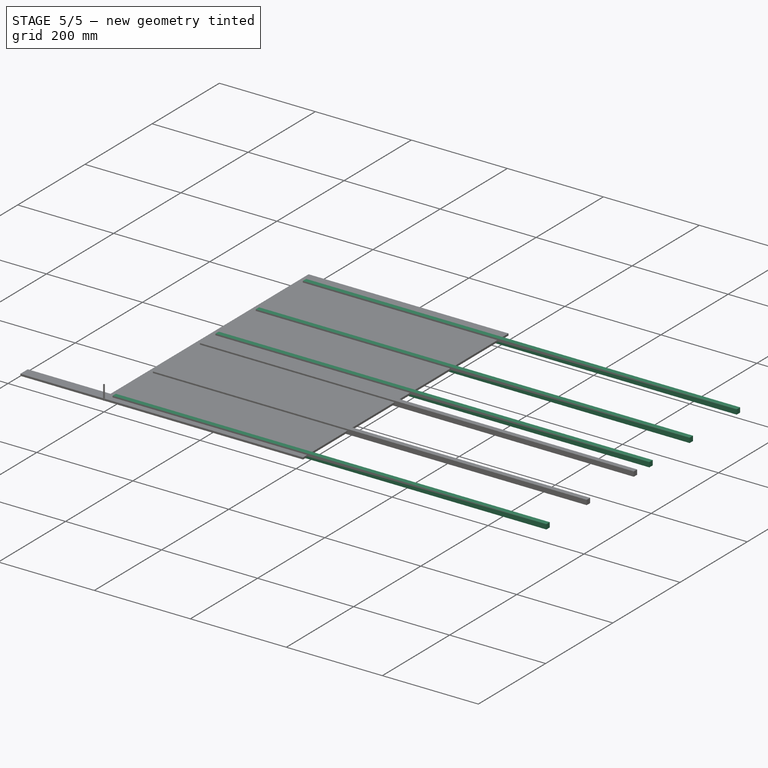
[diagram: stage 5 of 5 — iso view after this stage's code; geometry added in this stage tinted green]
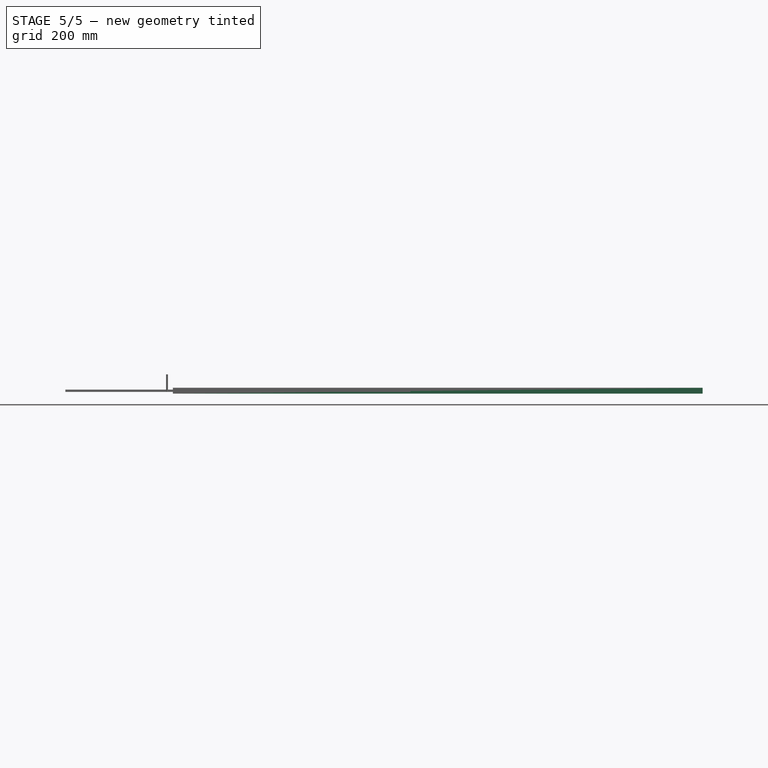
[diagram: stage 5 of 5 — front view after this stage's code; geometry added in this stage tinted green]
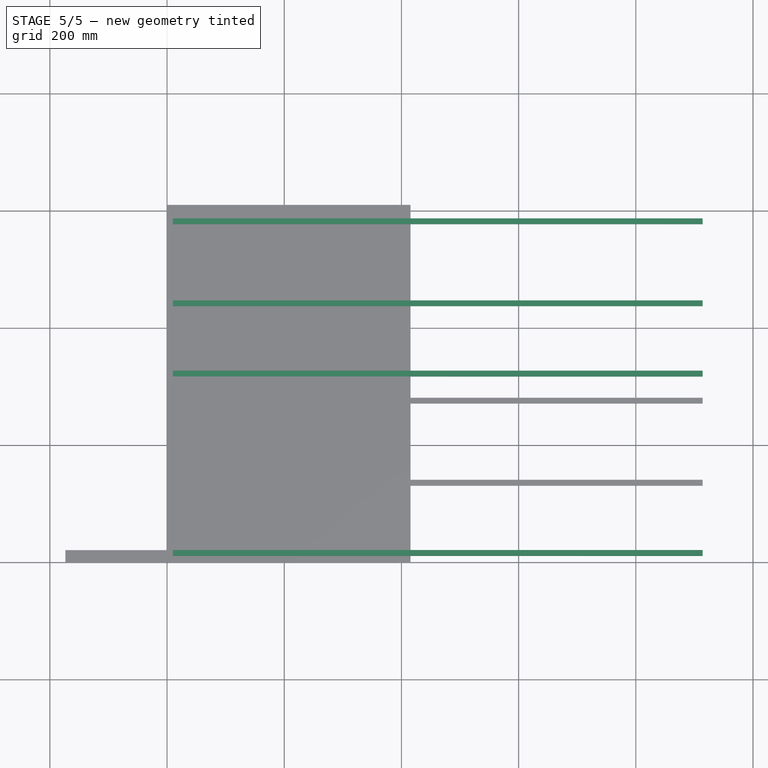
[diagram: stage 5 of 5 — top view after this stage's code; geometry added in this stage tinted green]
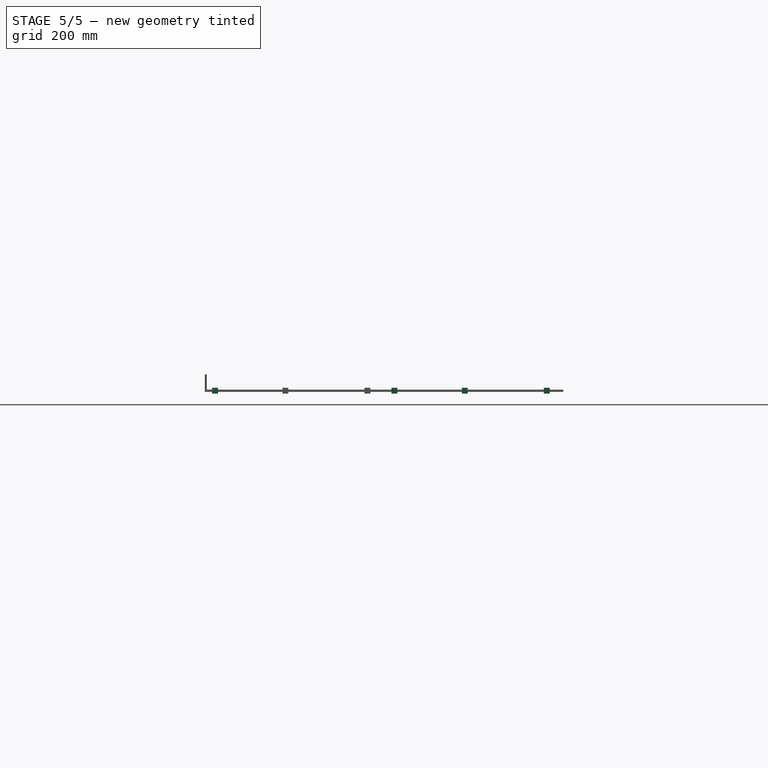
[diagram: stage 5 of 5 — right view after this stage's code; geometry added in this stage tinted green]
FEATURE [Path::FeaturePython] __175mm_Endmill  label="3.175mm Endmill001"  # Path/CAM operation (typed FeaturePython)
  HorizFeed = 33.3333
  HorizRapid = 0
  SpindleDir = 0
  SpindleSpeed = 18000
  Tool = -> ToolBit
  ToolNumber = 1
  VertFeed = 33.3333
  VertRapid = 0
  expr: HorizRapid = SetupSheet.HorizRapid
  expr: VertRapid = SetupSheet.VertRapid
FEATURE [App::DocumentObjectGroup] Tools
  Group = -> [__175mm_Endmill]
FEATURE [Part::Box] Box  label="Cube"
  AttacherType = Attacher::AttachEngine3D
  Height = 10
  Length = 904
  Placement = pos=(10,11,-3) rot=(0,0,1;0rad)
  Width = 10
FEATURE [Part::Compound] Compound
  Links = -> [Box,Box001,Box002]
FEATURE [App::DocumentObjectGroup] Model
  Group = -> [Array]
FEATURE [Part::FeaturePython] Stock001  # WARN: FeaturePython — macro-defined, semantics opaque (R4)
  Base = -> Model
  ExtXneg = 1
  ExtXpos = 1
  ExtYneg = 1
  ExtYpos = 1
  ExtZneg = 0
  ExtZpos = 1
  StockType = FromBase
FEATURE [Part::FeaturePython] Array001  # Draft array (typed FeaturePython)
  AlwaysSyncPlacement = false
  Angle = 360
  ArrayType = 0
  Axis = (0,0,1)
  Base = -> Compound
  Center = (0,0,0)
  Count = 2
  ExpandArray = false
  Fuse = false
  IntervalAxis = (0,0,0)
  IntervalX = (100,0,0)
  IntervalY = (0,306.2,0)
  IntervalZ = (0,0,100)
  NumberCircles = 3
  NumberPolar = 5
  NumberX = 1
  NumberY = 2
  NumberZ = 1
  PlacementList = 2 placements: [(0,0,0),(0,306.2,0)]
  RadialDistance = 50
  ScaleList = (2) [(1,1,1),(1,1,1)]
  Symmetry = 1
  TangentialDistance = 25
  expr: .IntervalY.y = Array.IntervalY.y
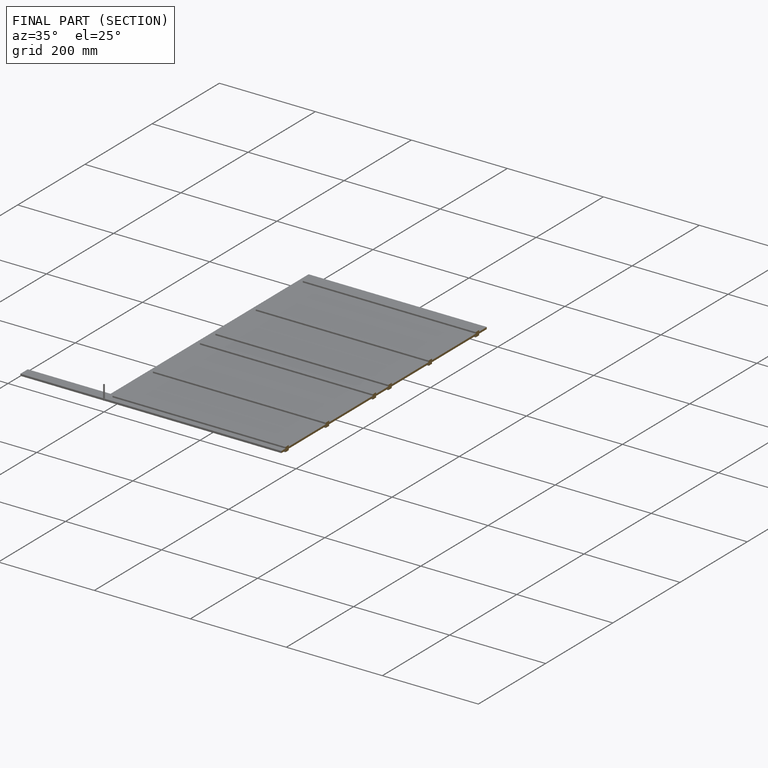
[diagram: finished part — half-section view (interior)]
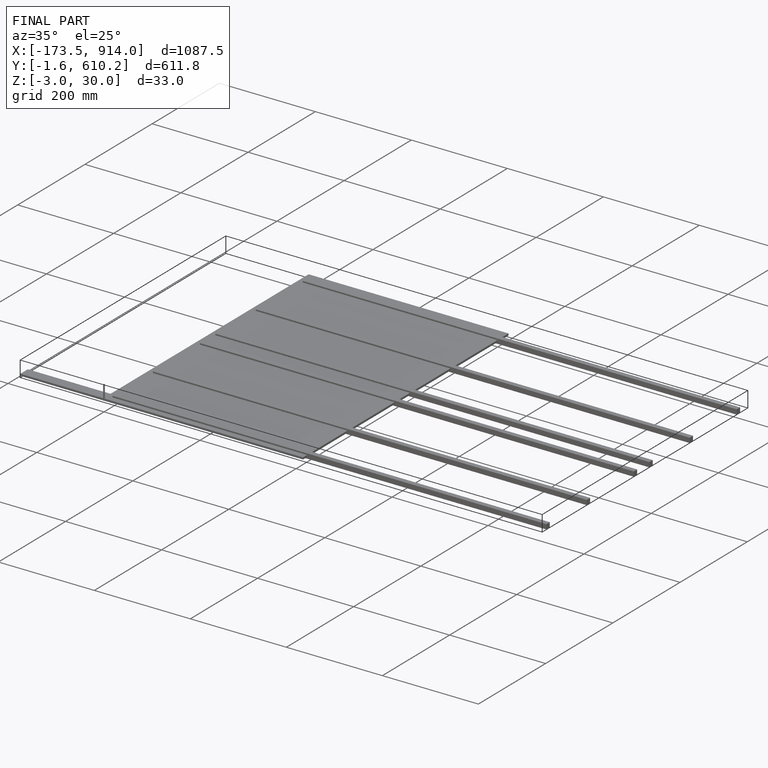
[diagram: finished part — iso view with bounding-box wireframe]
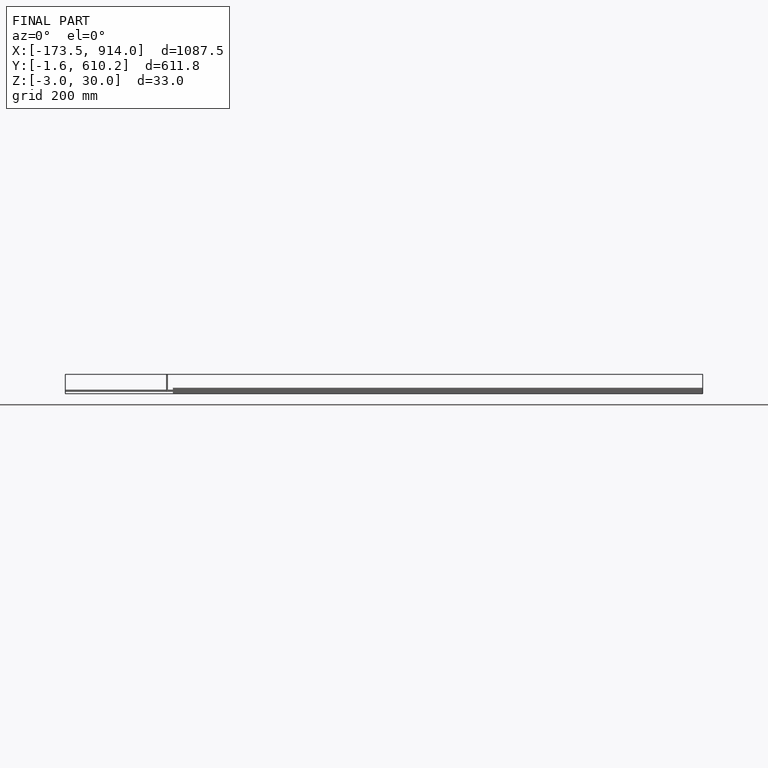
[diagram: finished part — front view with bounding-box wireframe]
